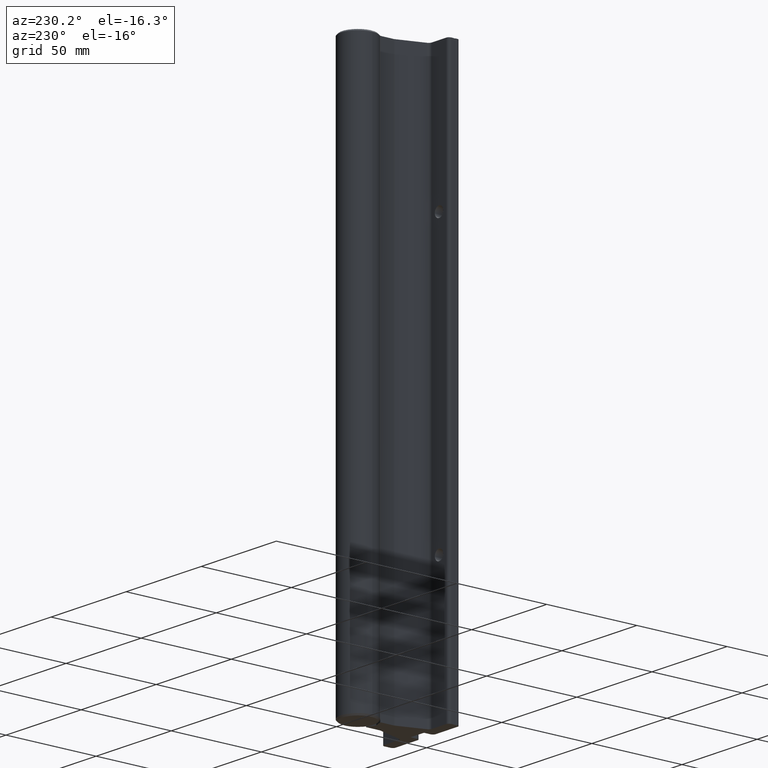
[diagram: clean part render]
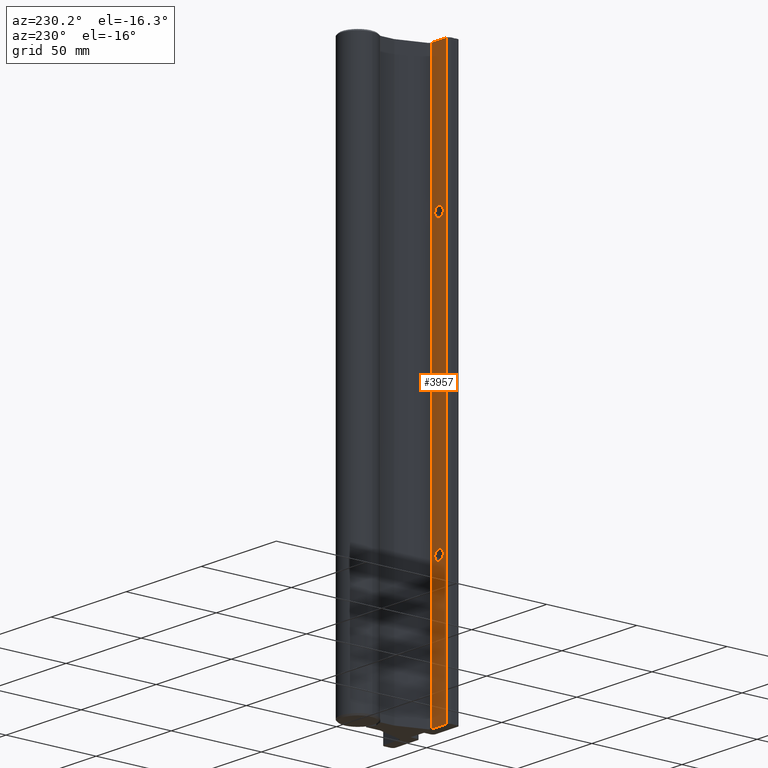
[diagram: same view with one face highlighted and labeled with its STEP entity id]
A machine part, auxiliary view. The second image highlights one B-rep face of the part: STEP entity #3957.
In plain terms, the highlighted planar face has unit normal (-0, 1, 0).
Its self-contained STEP definition (entity closure, byte-faithful):
#37 = DIRECTION ( 'NONE',  ( 3.027931502002314364E-15, -1.000000000000000000, -0.0000000000000000000 ) ) ;
#74 = VERTEX_POINT ( 'NONE', #1999 ) ;
#115 = AXIS2_PLACEMENT_3D ( 'NONE', #832, #796, #2985 ) ;
#156 = AXIS2_PLACEMENT_3D ( 'NONE', #1076, #1060, #1345 ) ;
#184 = LINE ( 'NONE', #936, #3835 ) ;
#203 = DIRECTION ( 'NONE',  ( -1.000000000000000000, -3.027931502002314364E-15, 0.0000000000000000000 ) ) ;
#244 = ORIENTED_EDGE ( 'NONE', *, *, #3423, .T. ) ;
#271 = CIRCLE ( 'NONE', #1228, 0.1104999999999999594 ) ;
#312 = CARTESIAN_POINT ( 'NONE',  ( -0.8150000000000001688, 0.2499999999999999167, -12.00000000000000178 ) ) ;
#344 = CARTESIAN_POINT ( 'NONE',  ( -0.6250000000000000000, 0.2500000000000004996, -3.000000000000000444 ) ) ;
#388 = VERTEX_POINT ( 'NONE', #1815 ) ;
#490 = ORIENTED_EDGE ( 'NONE', *, *, #3038, .T. ) ;
#513 = AXIS2_PLACEMENT_3D ( 'NONE', #1485, #3966, #2114 ) ;
#556 = VERTEX_POINT ( 'NONE', #1098 ) ;
#696 = VERTEX_POINT ( 'NONE', #814 ) ;
#705 = EDGE_CURVE ( 'NONE', #1500, #388, #1273, .T. ) ;
#796 = DIRECTION ( 'NONE',  ( 3.027931502002314364E-15, -1.000000000000000000, -0.0000000000000000000 ) ) ;
#814 = CARTESIAN_POINT ( 'NONE',  ( -0.6250000000000000000, 0.2500000000000004996, -3.110500000000000043 ) ) ;
#832 = CARTESIAN_POINT ( 'NONE',  ( -0.6250000000000000000, 0.2500000000000004996, -3.000000000000000444 ) ) ;
#936 = CARTESIAN_POINT ( 'NONE',  ( -0.4315582357000016800, 0.2500000000000011657, -14.10463218188033174 ) ) ;
#1019 = FACE_OUTER_BOUND ( 'NONE', #3768, .T. ) ;
#1060 = DIRECTION ( 'NONE',  ( 3.027931502002314364E-15, -1.000000000000000000, -0.0000000000000000000 ) ) ;
#1076 = CARTESIAN_POINT ( 'NONE',  ( -0.6250000000000000000, 0.2500000000000004996, -9.000000000000001776 ) ) ;
#1098 = CARTESIAN_POINT ( 'NONE',  ( -0.8150000000000001688, 0.2499999999999999167, 0.0000000000000000000 ) ) ;
#1170 = CARTESIAN_POINT ( 'NONE',  ( -0.4315582357000016800, 0.2500000000000011102, -12.00000000000000178 ) ) ;
#1202 = ORIENTED_EDGE ( 'NONE', *, *, #705, .T. ) ;
#1228 = AXIS2_PLACEMENT_3D ( 'NONE', #344, #37, #3137 ) ;
#1273 = CIRCLE ( 'NONE', #2771, 0.1104999999999999594 ) ;
#1345 = DIRECTION ( 'NONE',  ( -1.000000000000000000, -3.090325784688081870E-15, 0.0000000000000000000 ) ) ;
#1358 = FACE_BOUND ( 'NONE', #3713, .T. ) ;
#1376 = ORIENTED_EDGE ( 'NONE', *, *, #2023, .F. ) ;
#1420 = DIRECTION ( 'NONE',  ( 3.027931502002314364E-15, -1.000000000000000000, -0.0000000000000000000 ) ) ;
#1485 = CARTESIAN_POINT ( 'NONE',  ( -0.4315582357000016800, 0.2500000000000011102, -14.10463218188033174 ) ) ;
#1491 = CARTESIAN_POINT ( 'NONE',  ( -0.8150000000000001688, 0.2499999999999999167, -14.10463218188033174 ) ) ;
#1500 = VERTEX_POINT ( 'NONE', #3693 ) ;
#1712 = LINE ( 'NONE', #1491, #3241 ) ;
#1779 = DIRECTION ( 'NONE',  ( 0.0000000000000000000, 0.0000000000000000000, 1.000000000000000000 ) ) ;
#1811 = PLANE ( 'NONE',  #513 ) ;
#1815 = CARTESIAN_POINT ( 'NONE',  ( -0.6250000000000000000, 0.2500000000000004996, -9.110500000000001819 ) ) ;
#1879 = DIRECTION ( 'NONE',  ( 0.0000000000000000000, 0.0000000000000000000, 1.000000000000000000 ) ) ;
#1993 = EDGE_CURVE ( 'NONE', #2910, #696, #3837, .T. ) ;
#1999 = CARTESIAN_POINT ( 'NONE',  ( -0.4315582357000016800, 0.2500000000000011657, 0.0000000000000000000 ) ) ;
#2023 = EDGE_CURVE ( 'NONE', #74, #556, #3633, .T. ) ;
#2114 = DIRECTION ( 'NONE',  ( -1.000000000000000000, -3.027931502002314364E-15, 0.0000000000000000000 ) ) ;
#2224 = ORIENTED_EDGE ( 'NONE', *, *, #3565, .F. ) ;
#2278 = LINE ( 'NONE', #1170, #2472 ) ;
#2285 = ORIENTED_EDGE ( 'NONE', *, *, #3932, .F. ) ;
#2294 = EDGE_CURVE ( 'NONE', #696, #2910, #271, .T. ) ;
#2390 = DIRECTION ( 'NONE',  ( 1.000000000000000000, 3.027931502002314364E-15, -0.0000000000000000000 ) ) ;
#2472 = VECTOR ( 'NONE', #2390, 39.37007874015748143 ) ;
#2602 = VERTEX_POINT ( 'NONE', #3019 ) ;
#2671 = CIRCLE ( 'NONE', #156, 0.1104999999999999594 ) ;
#2742 = DIRECTION ( 'NONE',  ( -1.000000000000000000, -3.090325784688081870E-15, 0.0000000000000000000 ) ) ;
#2771 = AXIS2_PLACEMENT_3D ( 'NONE', #3592, #1420, #2742 ) ;
#2910 = VERTEX_POINT ( 'NONE', #3514 ) ;
#2956 = CARTESIAN_POINT ( 'NONE',  ( -0.4315582357000016800, 0.2500000000000011102, 0.0000000000000000000 ) ) ;
#2985 = DIRECTION ( 'NONE',  ( -1.000000000000000000, -3.090325784688081870E-15, 0.0000000000000000000 ) ) ;
#2987 = FACE_BOUND ( 'NONE', #3007, .T. ) ;
#3007 = EDGE_LOOP ( 'NONE', ( #490, #1202 ) ) ;
#3019 = CARTESIAN_POINT ( 'NONE',  ( -0.4315582357000016800, 0.2500000000000011657, -12.00000000000000178 ) ) ;
#3038 = EDGE_CURVE ( 'NONE', #388, #1500, #2671, .T. ) ;
#3093 = VECTOR ( 'NONE', #203, 39.37007874015748143 ) ;
#3137 = DIRECTION ( 'NONE',  ( -1.000000000000000000, -3.090325784688081870E-15, 0.0000000000000000000 ) ) ;
#3241 = VECTOR ( 'NONE', #1779, 39.37007874015748143 ) ;
#3423 = EDGE_CURVE ( 'NONE', #3601, #556, #1712, .T. ) ;
#3514 = CARTESIAN_POINT ( 'NONE',  ( -0.6250000000000000000, 0.2500000000000004996, -2.889500000000000401 ) ) ;
#3565 = EDGE_CURVE ( 'NONE', #2602, #74, #184, .T. ) ;
#3592 = CARTESIAN_POINT ( 'NONE',  ( -0.6250000000000000000, 0.2500000000000004996, -9.000000000000001776 ) ) ;
#3601 = VERTEX_POINT ( 'NONE', #312 ) ;
#3633 = LINE ( 'NONE', #2956, #3093 ) ;
#3685 = ORIENTED_EDGE ( 'NONE', *, *, #1993, .T. ) ;
#3693 = CARTESIAN_POINT ( 'NONE',  ( -0.6250000000000000000, 0.2500000000000004996, -8.889500000000001734 ) ) ;
#3713 = EDGE_LOOP ( 'NONE', ( #3739, #3685 ) ) ;
#3739 = ORIENTED_EDGE ( 'NONE', *, *, #2294, .T. ) ;
#3768 = EDGE_LOOP ( 'NONE', ( #2285, #244, #1376, #2224 ) ) ;
#3835 = VECTOR ( 'NONE', #1879, 39.37007874015748143 ) ;
#3837 = CIRCLE ( 'NONE', #115, 0.1104999999999999594 ) ;
#3932 = EDGE_CURVE ( 'NONE', #3601, #2602, #2278, .T. ) ;
#3957 = ADVANCED_FACE ( 'NONE', ( #2987, #1358, #1019 ), #1811, .T. ) ;
#3966 = DIRECTION ( 'NONE',  ( -3.027931502002314364E-15, 1.000000000000000000, 0.0000000000000000000 ) ) ;